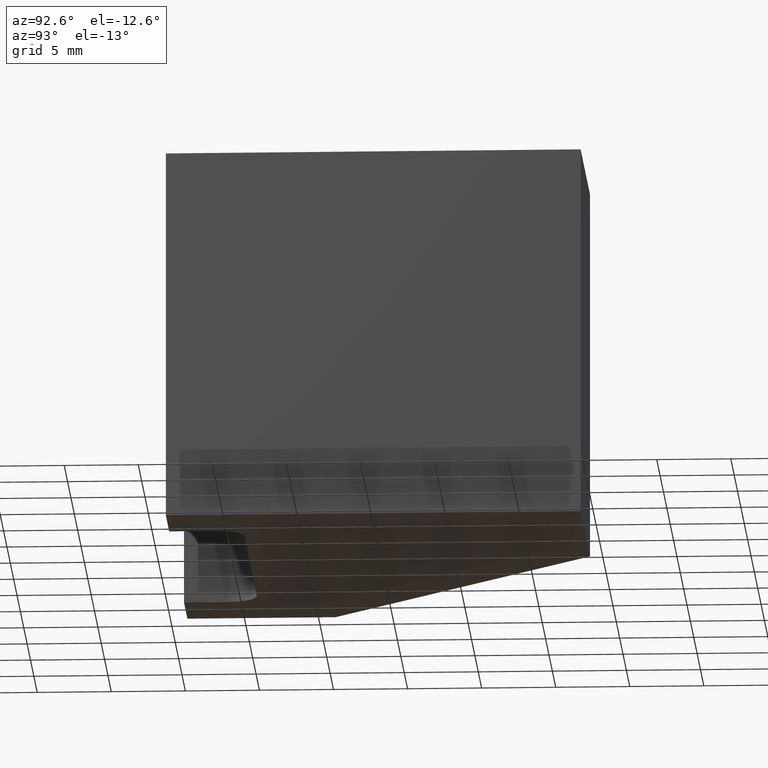
[diagram: clean part render]
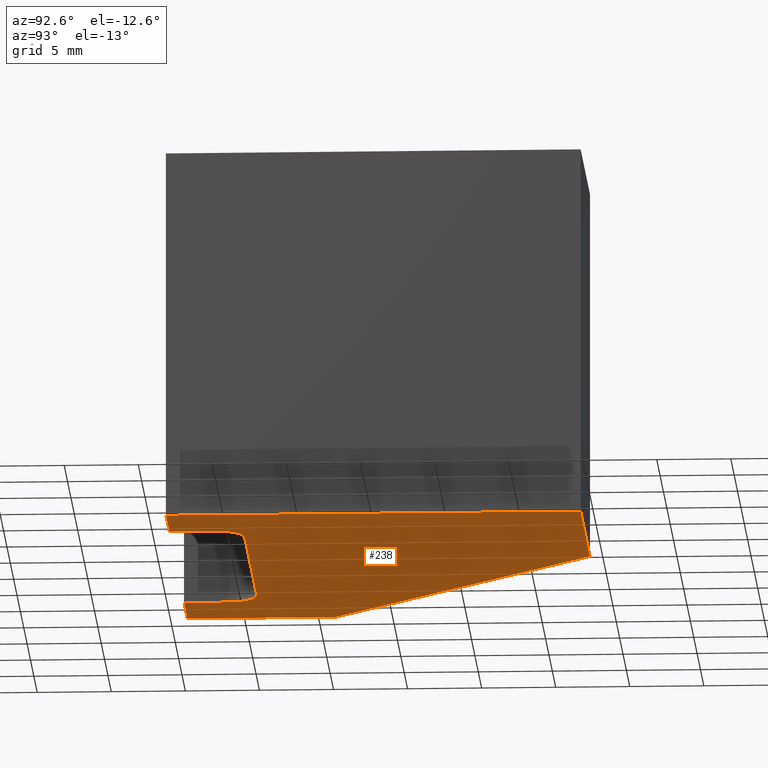
[diagram: same view with one face highlighted and labeled with its STEP entity id]
A machine part, auxiliary view. The second image highlights one B-rep face of the part: STEP entity #238.
In plain terms, the highlighted planar face has unit normal (0, 0, 1).
Its self-contained STEP definition (entity closure, byte-faithful):
#18=FACE_OUTER_BOUND('',#31,.T.);
#31=EDGE_LOOP('',(#161,#162,#163,#164,#165,#166,#167,#168,#169,#170,#171));
#44=CIRCLE('',#275,2.);
#45=CIRCLE('',#276,2.);
#48=LINE('',#360,#77);
#49=LINE('',#362,#78);
#50=LINE('',#364,#79);
#51=LINE('',#368,#80);
#52=LINE('',#372,#81);
#53=LINE('',#374,#82);
#54=LINE('',#376,#83);
#55=LINE('',#378,#84);
#56=LINE('',#379,#85);
#77=VECTOR('',#295,10.);
#78=VECTOR('',#296,10.);
#79=VECTOR('',#297,10.);
#80=VECTOR('',#300,10.);
#81=VECTOR('',#303,10.);
#82=VECTOR('',#304,10.);
#83=VECTOR('',#305,10.);
#84=VECTOR('',#306,10.);
#85=VECTOR('',#307,10.);
#106=VERTEX_POINT('',#358);
#107=VERTEX_POINT('',#359);
#108=VERTEX_POINT('',#361);
#109=VERTEX_POINT('',#363);
#110=VERTEX_POINT('',#365);
#111=VERTEX_POINT('',#367);
#112=VERTEX_POINT('',#369);
#113=VERTEX_POINT('',#371);
#114=VERTEX_POINT('',#373);
#115=VERTEX_POINT('',#375);
#116=VERTEX_POINT('',#377);
#128=EDGE_CURVE('',#106,#107,#48,.T.);
#129=EDGE_CURVE('',#108,#106,#49,.T.);
#130=EDGE_CURVE('',#109,#108,#50,.T.);
#131=EDGE_CURVE('',#110,#109,#44,.T.);
#132=EDGE_CURVE('',#111,#110,#51,.T.);
#133=EDGE_CURVE('',#112,#111,#45,.T.);
#134=EDGE_CURVE('',#113,#112,#52,.T.);
#135=EDGE_CURVE('',#114,#113,#53,.T.);
#136=EDGE_CURVE('',#115,#114,#54,.T.);
#137=EDGE_CURVE('',#116,#115,#55,.T.);
#138=EDGE_CURVE('',#107,#116,#56,.T.);
#161=ORIENTED_EDGE('',*,*,#128,.F.);
#162=ORIENTED_EDGE('',*,*,#129,.F.);
#163=ORIENTED_EDGE('',*,*,#130,.F.);
#164=ORIENTED_EDGE('',*,*,#131,.F.);
#165=ORIENTED_EDGE('',*,*,#132,.F.);
#166=ORIENTED_EDGE('',*,*,#133,.F.);
#167=ORIENTED_EDGE('',*,*,#134,.F.);
#168=ORIENTED_EDGE('',*,*,#135,.F.);
#169=ORIENTED_EDGE('',*,*,#136,.F.);
#170=ORIENTED_EDGE('',*,*,#137,.F.);
#171=ORIENTED_EDGE('',*,*,#138,.F.);
#227=PLANE('',#274);
#238=ADVANCED_FACE('',(#18),#227,.F.);
#274=AXIS2_PLACEMENT_3D('',#357,#293,#294);
#275=AXIS2_PLACEMENT_3D('',#366,#298,#299);
#276=AXIS2_PLACEMENT_3D('',#370,#301,#302);
#293=DIRECTION('center_axis',(0.,0.,1.));
#294=DIRECTION('ref_axis',(1.,0.,0.));
#295=DIRECTION('',(1.58603289232165E-16,1.,0.));
#296=DIRECTION('',(1.,-4.44089209850062E-16,0.));
#297=DIRECTION('',(0.,-1.,0.));
#298=DIRECTION('center_axis',(0.,0.,-1.));
#299=DIRECTION('ref_axis',(1.,0.,0.));
#300=DIRECTION('',(1.,0.,0.));
#301=DIRECTION('center_axis',(0.,0.,-1.));
#302=DIRECTION('ref_axis',(1.11022302462516E-15,1.,0.));
#303=DIRECTION('',(0.,1.,0.));
#304=DIRECTION('',(1.,0.,0.));
#305=DIRECTION('',(-4.44089209850063E-16,-1.,0.));
#306=DIRECTION('',(-0.707106781186548,-0.707106781186547,0.));
#307=DIRECTION('',(-1.,3.1720657846433E-16,0.));
#357=CARTESIAN_POINT('Origin',(2.00281157643988,-1.74119706031455,-12.5));
#358=CARTESIAN_POINT('',(16.,-14.,-12.5));
#359=CARTESIAN_POINT('',(16.,14.,-12.5));
#360=CARTESIAN_POINT('',(16.,14.,-12.5));
#361=CARTESIAN_POINT('',(11.,-14.,-12.5));
#362=CARTESIAN_POINT('',(16.,-14.,-12.5));
#363=CARTESIAN_POINT('',(11.,-11.,-12.5));
#364=CARTESIAN_POINT('',(11.,-14.,-12.5));
#365=CARTESIAN_POINT('',(9.,-9.,-12.5));
#366=CARTESIAN_POINT('Origin',(9.,-11.,-12.5));
#367=CARTESIAN_POINT('',(-9.,-9.,-12.5));
#368=CARTESIAN_POINT('',(9.,-9.,-12.5));
#369=CARTESIAN_POINT('',(-11.,-11.,-12.5));
#370=CARTESIAN_POINT('Origin',(-9.,-11.,-12.5));
#371=CARTESIAN_POINT('',(-11.,-14.,-12.5));
#372=CARTESIAN_POINT('',(-11.,-11.,-12.5));
#373=CARTESIAN_POINT('',(-16.,-14.,-12.5));
#374=CARTESIAN_POINT('',(-11.,-14.,-12.5));
#375=CARTESIAN_POINT('',(-16.,-4.,-12.5));
#376=CARTESIAN_POINT('',(-16.,-14.,-12.5));
#377=CARTESIAN_POINT('',(2.00000000000001,14.,-12.5));
#378=CARTESIAN_POINT('',(-16.,-4.,-12.5));
#379=CARTESIAN_POINT('',(2.00000000000001,14.,-12.5));